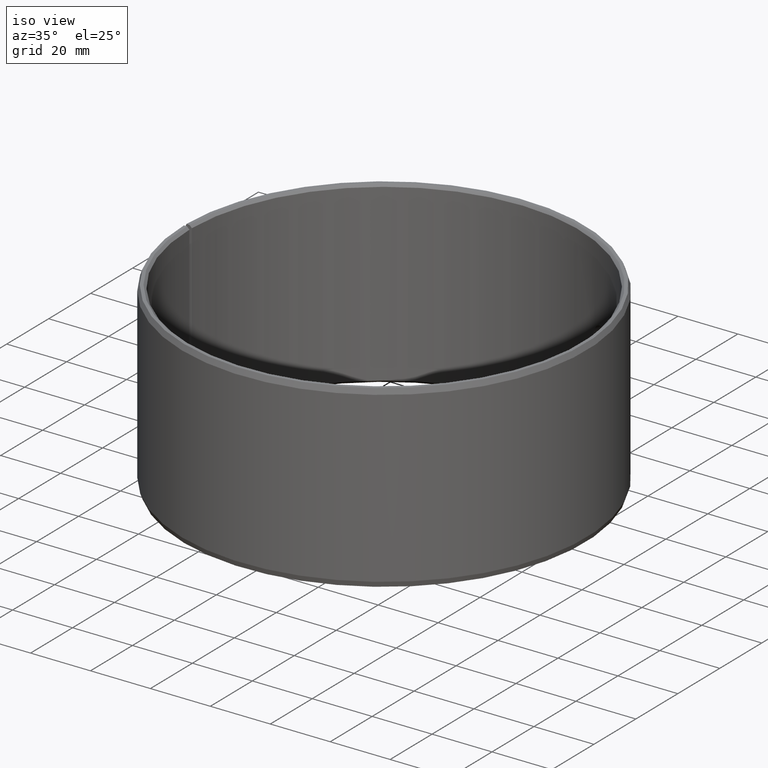
[diagram: clean part render]
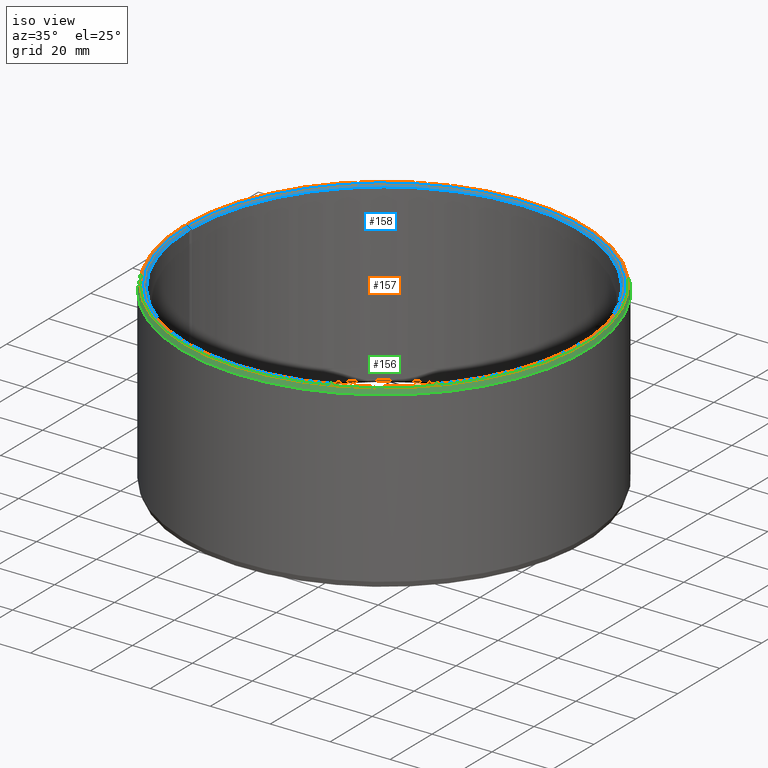
[diagram: same view with three faces highlighted in distinct colors, each labeled with its STEP entity id]
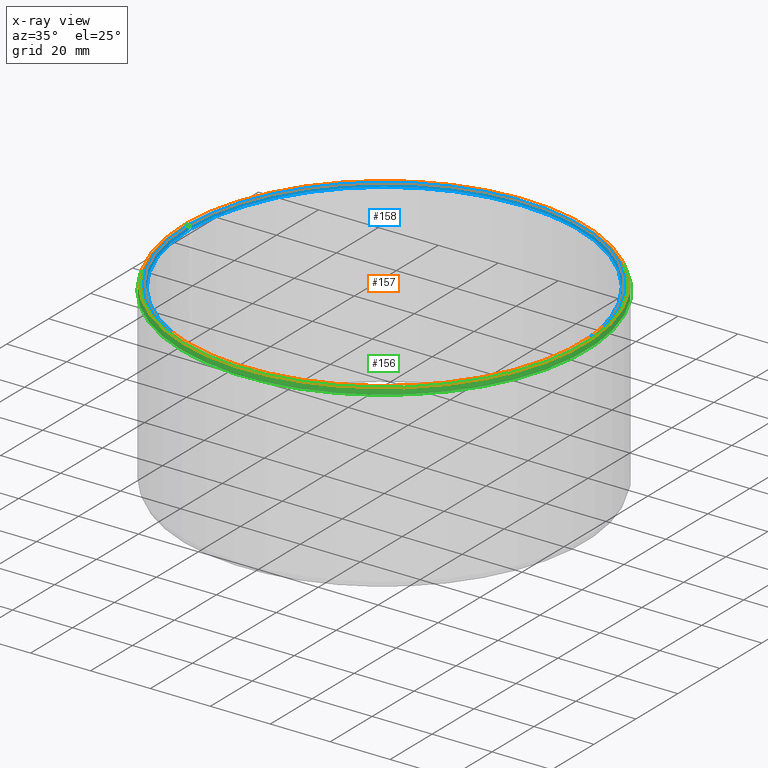
[diagram: x-ray of the same camera — body ghosted, the three highlighted faces saturated]
A machine part, iso view with three faces highlighted in distinct colors.
The next image is the same camera in x-ray (body ghosted, the three faces saturated) — at least one of them is partly hidden behind the body in this view.
Their STEP definitions:

[orange] entity #157 — the highlighted planar face has unit normal (0, -0, 1).
#157=ADVANCED_FACE('',(#174),#175,.T.);
#174=FACE_OUTER_BOUND('',#200,.T.);
#175=PLANE('',#201);
#200=EDGE_LOOP('',(#245,#246,#247,#248));
#201=AXIS2_PLACEMENT_3D('',#249,#250,#251);
#245=ORIENTED_EDGE('',*,*,#316,.T.);
#246=ORIENTED_EDGE('',*,*,#317,.T.);
#247=ORIENTED_EDGE('',*,*,#318,.F.);
#248=ORIENTED_EDGE('',*,*,#312,.F.);
#249=CARTESIAN_POINT('',(0.00116660355288955,0.0668346727833506,0.06));
#250=DIRECTION('',(-6.12323399573677E-017,0.0,1.0));
#251=DIRECTION('',(1.0,0.0,6.12323399573677E-017));
#312=EDGE_CURVE('',#346,#347,#348,.T.);
#316=EDGE_CURVE('',#346,#354,#355,.T.);
#317=EDGE_CURVE('',#354,#356,#357,.T.);
#318=EDGE_CURVE('',#347,#356,#358,.T.);
#346=VERTEX_POINT('',#396);
#347=VERTEX_POINT('',#397);
#348=CIRCLE('',#398,0.0668448535783209);
#354=VERTEX_POINT('',#406);
#355=LINE('',#407,#408);
#356=VERTEX_POINT('',#409);
#357=CIRCLE('',#410,0.0658);
#358=LINE('',#411,#412);
#396=CARTESIAN_POINT('',(0.00116660355288955,0.0668346727833506,0.06));
#397=CARTESIAN_POINT('',(-1.04083408558608E-017,0.0668448535783209,0.06));
#398=AXIS2_PLACEMENT_3D('',#594,#595,#596);
#406=CARTESIAN_POINT('',(0.00114836834357325,0.0657899783412906,0.06));
#407=CARTESIAN_POINT('',(0.00116660355288955,0.0668346727833506,0.06));
#408=VECTOR('',#602,1.0);
#409=CARTESIAN_POINT('',(-1.04083408558608E-017,0.0658,0.06));
#410=AXIS2_PLACEMENT_3D('',#603,#604,#605);
#411=CARTESIAN_POINT('',(-1.04083408558608E-017,0.0668448535783209,0.06));
#412=VECTOR('',#606,1.0);
#594=CARTESIAN_POINT('',(-1.04083408558608E-017,-6.93889390390723E-018,0.06));
#595=DIRECTION('',(6.12323399573677E-017,0.0,-1.0));
#596=DIRECTION('',(-1.0,0.0,-6.12323399573677E-017));
#602=DIRECTION('',(-0.0174524064372836,-0.999847695156391,-1.0686516840419E-018));
#603=CARTESIAN_POINT('',(-1.04083408558608E-017,-6.93889390390723E-018,0.06));
#604=DIRECTION('',(6.12323399573677E-017,0.0,-1.0));
#605=DIRECTION('',(-1.0,0.0,-6.12323399573677E-017));
#606=DIRECTION('',(0.0,-1.0,0.0));

[blue] entity #158 — the highlighted conical surface has half-angle 45 deg.
#158=ADVANCED_FACE('',(#176),#177,.F.);
#176=FACE_OUTER_BOUND('',#202,.T.);
#177=CONICAL_SURFACE('',#203,0.0658,0.785398163397462);
#202=EDGE_LOOP('',(#252,#253,#254,#255));
#203=AXIS2_PLACEMENT_3D('',#256,#257,#258);
#252=ORIENTED_EDGE('',*,*,#319,.T.);
#253=ORIENTED_EDGE('',*,*,#320,.F.);
#254=ORIENTED_EDGE('',*,*,#317,.F.);
#255=ORIENTED_EDGE('',*,*,#321,.T.);
#256=CARTESIAN_POINT('',(-1.04083408558608E-017,-6.93889390390723E-018,0.06));
#257=DIRECTION('',(-6.12323399573677E-017,0.0,1.0));
#258=DIRECTION('',(1.0,0.0,6.12323399573677E-017));
#317=EDGE_CURVE('',#354,#356,#357,.T.);
#319=EDGE_CURVE('',#359,#360,#361,.T.);
#320=EDGE_CURVE('',#356,#360,#362,.T.);
#321=EDGE_CURVE('',#354,#359,#363,.T.);
#354=VERTEX_POINT('',#406);
#356=VERTEX_POINT('',#409);
#357=CIRCLE('',#410,0.0658);
#359=VERTEX_POINT('',#413);
#360=VERTEX_POINT('',#414);
#361=CIRCLE('',#415,0.065);
#362=LINE('',#416,#417);
#363=LINE('',#418,#419);
#406=CARTESIAN_POINT('',(0.00114836834357325,0.0657899783412906,0.06));
#409=CARTESIAN_POINT('',(-1.04083408558608E-017,0.0658,0.06));
#410=AXIS2_PLACEMENT_3D('',#603,#604,#605);
#413=CARTESIAN_POINT('',(0.00113440641842342,0.0649901001851654,0.0592));
#414=CARTESIAN_POINT('',(-1.04083408558608E-017,0.065,0.0592));
#415=AXIS2_PLACEMENT_3D('',#607,#608,#609);
#416=CARTESIAN_POINT('',(-1.04083408558608E-017,0.0658,0.06));
#417=VECTOR('',#610,1.0);
#418=CARTESIAN_POINT('',(0.00114836834357325,0.0657899783412906,0.06));
#419=VECTOR('',#611,1.0);
#603=CARTESIAN_POINT('',(-1.04083408558608E-017,-6.93889390390723E-018,0.06));
#604=DIRECTION('',(6.12323399573677E-017,0.0,-1.0));
#605=DIRECTION('',(-1.0,0.0,-6.12323399573677E-017));
#607=CARTESIAN_POINT('',(-1.04083408558608E-017,-6.93889390390723E-018,0.0592));
#608=DIRECTION('',(6.12323399573677E-017,0.0,-1.0));
#609=DIRECTION('',(-1.0,0.0,-6.12323399573677E-017));
#610=DIRECTION('',(0.0,-0.707106781186551,-0.707106781186545));
#611=DIRECTION('',(-0.012340714939827,-0.706999085398827,-0.707106781186545));

[green] entity #156 — the highlighted conical surface has half-angle 20 deg.
#156=ADVANCED_FACE('',(#172),#173,.T.);
#172=FACE_OUTER_BOUND('',#198,.T.);
#173=CONICAL_SURFACE('',#199,0.0675,0.34906585039887);
#198=EDGE_LOOP('',(#238,#239,#240,#241));
#199=AXIS2_PLACEMENT_3D('',#242,#243,#244);
#238=ORIENTED_EDGE('',*,*,#312,.T.);
#239=ORIENTED_EDGE('',*,*,#313,.F.);
#240=ORIENTED_EDGE('',*,*,#314,.F.);
#241=ORIENTED_EDGE('',*,*,#315,.T.);
#242=CARTESIAN_POINT('',(-1.04083408558608E-017,-6.93889390390723E-018,0.0582));
#243=DIRECTION('',(6.12323399573677E-017,-0.0,-1.0));
#244=DIRECTION('',(-1.0,0.0,-6.12323399573677E-017));
#312=EDGE_CURVE('',#346,#347,#348,.T.);
#313=EDGE_CURVE('',#349,#347,#350,.T.);
#314=EDGE_CURVE('',#351,#349,#352,.T.);
#315=EDGE_CURVE('',#351,#346,#353,.T.);
#346=VERTEX_POINT('',#396);
#347=VERTEX_POINT('',#397);
#348=CIRCLE('',#398,0.0668448535783209);
#349=VERTEX_POINT('',#399);
#350=LINE('',#400,#401);
#351=VERTEX_POINT('',#402);
#352=CIRCLE('',#403,0.0675);
#353=LINE('',#404,#405);
#396=CARTESIAN_POINT('',(0.00116660355288955,0.0668346727833506,0.06));
#397=CARTESIAN_POINT('',(-1.04083408558608E-017,0.0668448535783209,0.06));
#398=AXIS2_PLACEMENT_3D('',#594,#595,#596);
#399=CARTESIAN_POINT('',(-1.04083408558608E-017,0.0675,0.0582));
#400=CARTESIAN_POINT('',(-1.04083408558608E-017,0.0675,0.0582));
#401=VECTOR('',#597,1.0);
#402=CARTESIAN_POINT('',(0.00117803743451663,0.0674897194230564,0.0582));
#403=AXIS2_PLACEMENT_3D('',#598,#599,#600);
#404=CARTESIAN_POINT('',(0.00117803743451663,0.0674897194230564,0.0582));
#405=VECTOR('',#601,1.0);
#594=CARTESIAN_POINT('',(-1.04083408558608E-017,-6.93889390390723E-018,0.06));
#595=DIRECTION('',(6.12323399573677E-017,0.0,-1.0));
#596=DIRECTION('',(-1.0,0.0,-6.12323399573677E-017));
#597=DIRECTION('',(0.0,-0.342020143325672,0.939692620785907));
#598=CARTESIAN_POINT('',(-1.04083408558608E-017,-6.93889390390723E-018,0.0582));
#599=DIRECTION('',(6.12323399573677E-017,0.0,-1.0));
#600=DIRECTION('',(-1.0,0.0,-6.12323399573677E-017));
#601=DIRECTION('',(-0.00596907455105761,-0.341968052001232,0.939692620785907));